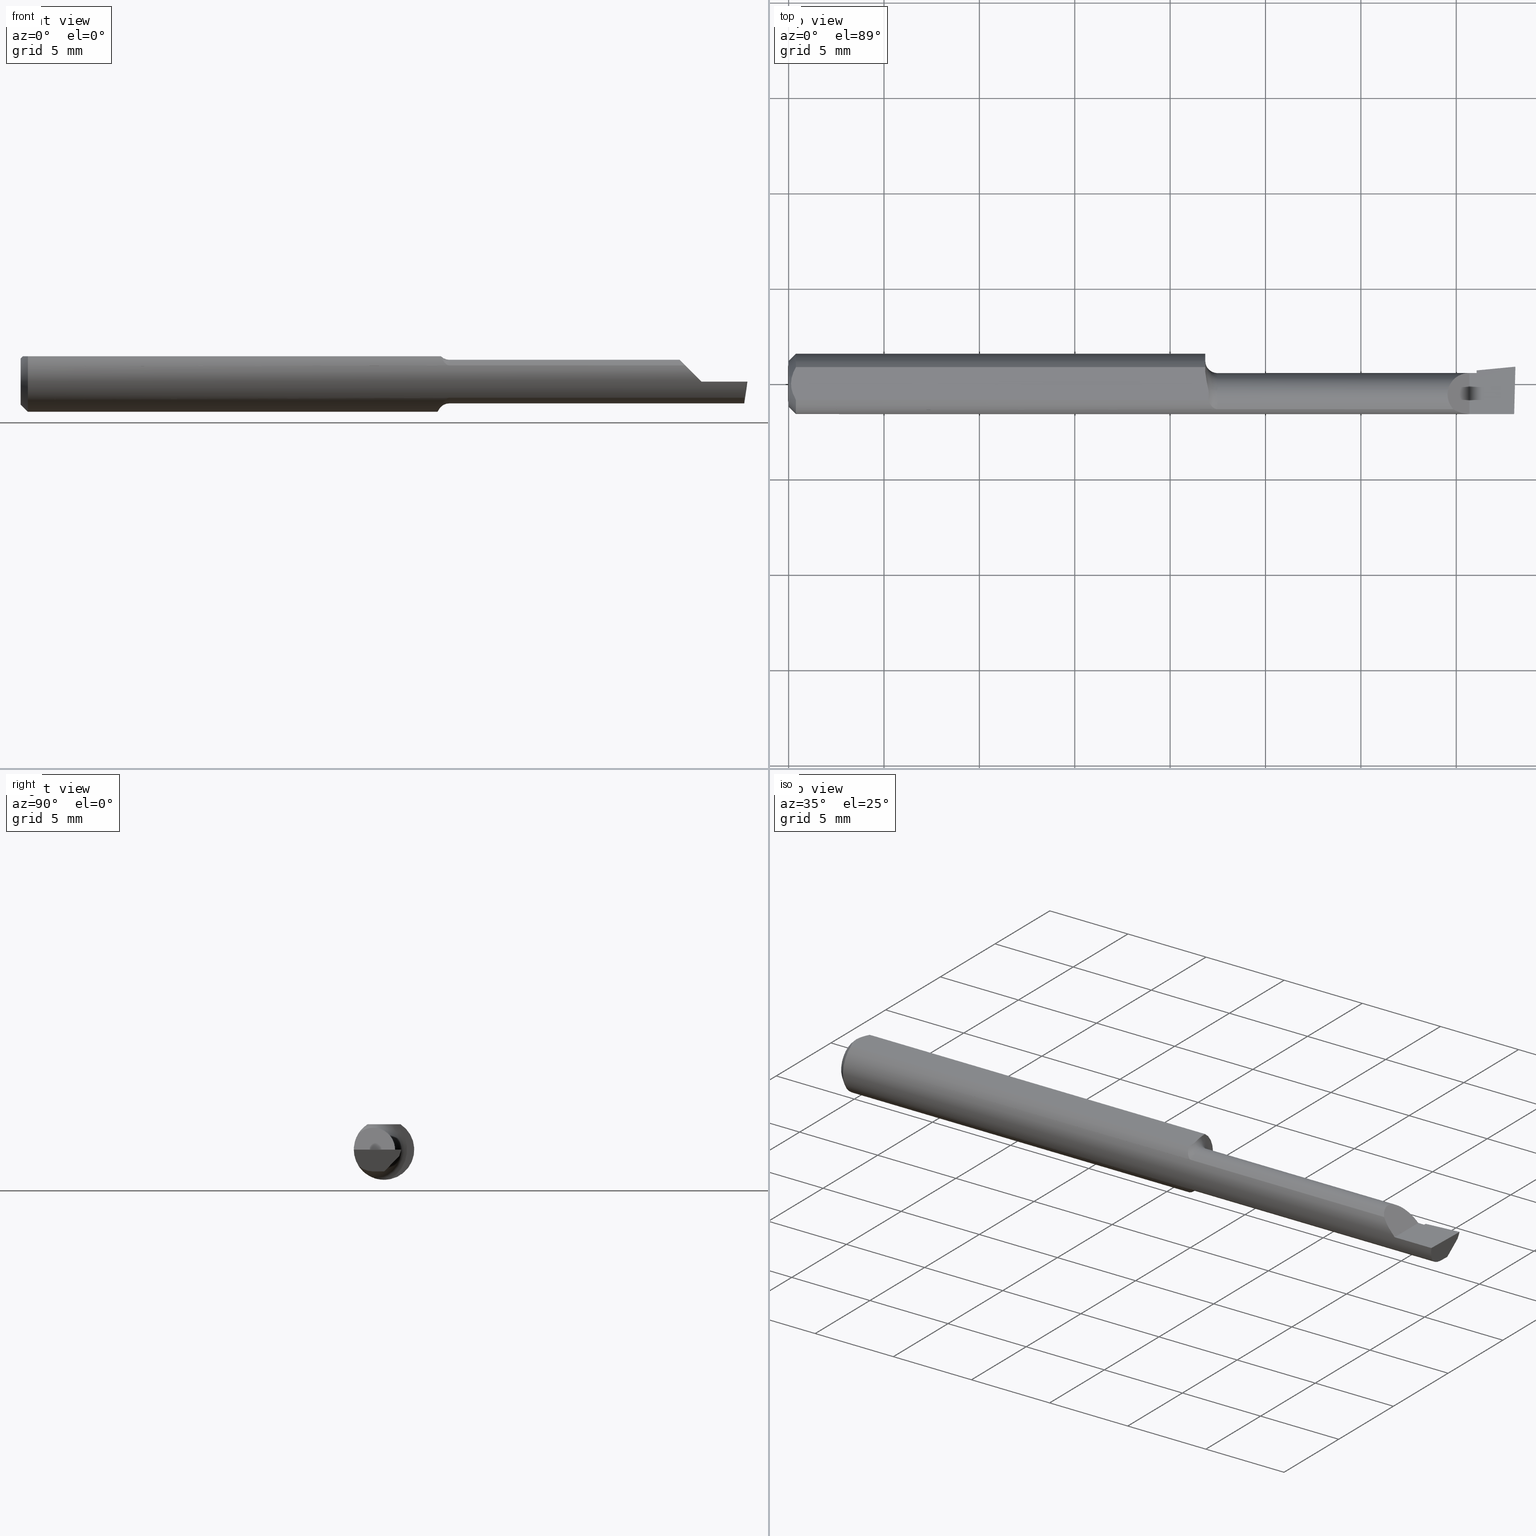
[diagram: canonical four-view strip — front | top / right | iso, engineering-drawing reading convention]
A machine part, canonical four-view strip (front | top / right | iso — engineering-drawing reading convention). The complete STEP part file that produces these views, byte-faithful:
ISO-10303-21;
HEADER;
FILE_DESCRIPTION (( 'STEP AP203' ),
    '1' );
FILE_NAME ('217261-B100600.STEP',
    '2024-04-22T21:56:52',
    ( '' ),
    ( '' ),
    'SwSTEP 2.0',
    'SolidWorks 2022',
    '' );
FILE_SCHEMA (( 'CONFIG_CONTROL_DESIGN' ));
ENDSEC;

DATA;
#1 = DIRECTION ( 'NONE',  ( 5.691349986800549142E-18, -1.000000000000000000, 7.598598113218357399E-17 ) ) ;
#2 = VERTEX_POINT ( 'NONE', #371 ) ;
#3 = CC_DESIGN_PERSON_AND_ORGANIZATION_ASSIGNMENT ( #617, #129, ( #56 ) ) ;
#4 = CARTESIAN_POINT ( 'NONE',  ( 0.8698990837423206113, -0.04251446938472885906, 0.04588310374207914960 ) ) ;
#5 = CARTESIAN_POINT ( 'NONE',  ( 1.405000000000000249, -0.06235000000000005121, 1.163414459189985436E-17 ) ) ;
#6 = CARTESIAN_POINT ( 'NONE',  ( 0.004999999999989931769, 7.898418181085889318E-16, 0.05235000000000000070 ) ) ;
#7 = DIRECTION ( 'NONE',  ( -1.000000000000000000, -5.691349986800549142E-18, 0.000000000000000000 ) ) ;
#8 = VECTOR ( 'NONE', #405, 39.37007874015748143 ) ;
#9 = EDGE_CURVE ( 'NONE', #170, #329, #126, .T. ) ;
#10 = CARTESIAN_POINT ( 'NONE',  ( 0.8787757133464819681, -0.05116520334387904267, -0.03564627526859106416 ) ) ;
#11 = CARTESIAN_POINT ( 'NONE',  ( 1.341051366671215384, -0.01896673977657559532, 0.06394863332878403250 ) ) ;
#12 = EDGE_LOOP ( 'NONE', ( #31, #161, #98, #81, #22, #474 ) ) ;
#13 = CARTESIAN_POINT ( 'NONE',  ( 0.8599999999999956568, 0.004792881695546979959, -0.06254535345742004426 ) ) ;
#14 = DIRECTION ( 'NONE',  ( 0.000000000000000000, -1.000000000000000000, 0.000000000000000000 ) ) ;
#15 = LINE ( 'NONE', #594, #94 ) ;
#16 = CARTESIAN_POINT ( 'NONE',  ( 1.498163195397628211, 0.03117310982593857888, -0.01400000000000000376 ) ) ;
#17 = ADVANCED_FACE ( 'NONE', ( #181 ), #389, .F. ) ;
#18 = VECTOR ( 'NONE', #262, 39.37007874015748143 ) ;
#19 = DIRECTION ( 'NONE',  ( 2.429359850419095604E-34, 4.268512490100411895E-17, 1.000000000000000000 ) ) ;
#20 = PERSON_AND_ORGANIZATION ( #319, #565 ) ;
#21 = CARTESIAN_POINT ( 'NONE',  ( 1.420000000000000151, 0.02442187865123201032, -0.01147666661066421533 ) ) ;
#22 = ORIENTED_EDGE ( 'NONE', *, *, #476, .F. ) ;
#23 = CARTESIAN_POINT ( 'NONE',  ( 0.000000000000000000, 0.03386738844375223462, 0.05234999999999997988 ) ) ;
#24 = VERTEX_POINT ( 'NONE', #584 ) ;
#25 = B_SPLINE_CURVE_WITH_KNOTS ( 'NONE', 3,
 ( #290, #202, #486, #287, #250, #6 ),
 .UNSPECIFIED., .F., .F.,
 ( 4, 2, 4 ),
 ( 0.002133667072902290657, 0.002585433046183636171, 0.003037199019464981685 ),
 .UNSPECIFIED. ) ;
#26 = AXIS2_PLACEMENT_3D ( 'NONE', #546, #599, #292 ) ;
#27 = EDGE_CURVE ( 'NONE', #593, #373, #350, .T. ) ;
#28 = LINE ( 'NONE', #23, #36 ) ;
#29 = ORIENTED_EDGE ( 'NONE', *, *, #493, .T. ) ;
#30 = DIRECTION ( 'NONE',  ( -1.000000000000000000, -0.000000000000000000, -0.000000000000000000 ) ) ;
#31 = ORIENTED_EDGE ( 'NONE', *, *, #600, .F. ) ;
#32 = APPLICATION_CONTEXT ( 'configuration controlled 3d designs of mechanical parts and assemblies' ) ;
#33 = CARTESIAN_POINT ( 'NONE',  ( 1.493589448587071544, -0.05267366071428580820, -0.03336177403790607093 ) ) ;
#34 = VERTEX_POINT ( 'NONE', #249 ) ;
#35 = ADVANCED_FACE ( 'NONE', ( #298 ), #398, .F. ) ;
#36 = VECTOR ( 'NONE', #452, 39.37007874015748143 ) ;
#37 = LINE ( 'NONE', #224, #157 ) ;
#38 = ORIENTED_EDGE ( 'NONE', *, *, #423, .T. ) ;
#39 = APPROVAL ( #84, 'UNSPECIFIED' ) ;
#40 = CALENDAR_DATE ( 2024, 22, 4 ) ;
#41 = B_SPLINE_CURVE_WITH_KNOTS ( 'NONE', 3,
 ( #244, #583, #52, #392, #243, #483, #445, #197, #149, #101, #194, #95, #50, #337 ),
 .UNSPECIFIED., .F., .F.,
 ( 4, 2, 2, 2, 2, 2, 4 ),
 ( 0.008234143088603517943, 0.008591734916881395637, 0.008770530831020334483, 0.008859928788089801305, 0.008949326745159269861, 0.009306918573437145820, 0.009664510401715021778 ),
 .UNSPECIFIED. ) ;
#42 = LINE ( 'NONE', #322, #48 ) ;
#43 = VERTEX_POINT ( 'NONE', #16 ) ;
#44 = COORDINATED_UNIVERSAL_TIME_OFFSET ( 8, 0, .BEHIND. ) ;
#45 = CARTESIAN_POINT ( 'NONE',  ( 1.494656860756163885, -0.05903713403021959572, -0.02331472336167218079 ) ) ;
#46 = ORIENTED_EDGE ( 'NONE', *, *, #260, .F. ) ;
#47 = FACE_OUTER_BOUND ( 'NONE', #480, .T. ) ;
#48 = VECTOR ( 'NONE', #327, 39.37007874015748143 ) ;
#49 = ORIENTED_EDGE ( 'NONE', *, *, #173, .T. ) ;
#50 = CARTESIAN_POINT ( 'NONE',  ( 0.8670657631504199436, -0.02914627190158990133, 0.05235000000000000764 ) ) ;
#51 = DIRECTION ( 'NONE',  ( -0.9922060308645520577, 0.02598182930466758078, 0.1218693434051181523 ) ) ;
#52 = CARTESIAN_POINT ( 'NONE',  ( 0.8606843363331831975, 0.01400540109987305146, 0.05235000000000000070 ) ) ;
#53 = CARTESIAN_POINT ( 'NONE',  ( 1.510364203804932748, 0.03234793331252792947, -0.01400000000000000376 ) ) ;
#54 = CARTESIAN_POINT ( 'NONE',  ( 0.8678735227475140590, -0.03849383661596396389, 0.04935695859860204926 ) ) ;
#55 = FACE_OUTER_BOUND ( 'NONE', #406, .T. ) ;
#56 = SECURITY_CLASSIFICATION ( '', '', #178 ) ;
#57 = CARTESIAN_POINT ( 'NONE',  ( 0.8659889881172213588, -0.03406974560157234599, -0.05264335079965574982 ) ) ;
#58 = DIRECTION ( 'NONE',  ( 0.02617694830784713170, 0.9996573249755579260, -3.584133854792137963E-18 ) ) ;
#59 = CARTESIAN_POINT ( 'NONE',  ( 0.8602764403634770574, -0.002103274276246028252, -0.06268864719924559237 ) ) ;
#60 = EDGE_CURVE ( 'NONE', #633, #585, #589, .T. ) ;
#61 = DIRECTION ( 'NONE',  ( -0.9953961983671800740, -0.09584575252021031166, 0.000000000000000000 ) ) ;
#62 = APPLICATION_PROTOCOL_DEFINITION ( 'international standard', 'config_control_design', 1994, #135 ) ;
#63 = DIRECTION ( 'NONE',  ( -1.000000000000000000, -5.691349986800549142E-18, 0.000000000000000000 ) ) ;
#64 = VECTOR ( 'NONE', #175, 39.37007874015748143 ) ;
#65 = CARTESIAN_POINT ( 'NONE',  ( 1.420000000000000151, 0.02794687614419681318, 0.000000000000000000 ) ) ;
#66 = ORIENTED_EDGE ( 'NONE', *, *, #508, .F. ) ;
#67 = CARTESIAN_POINT ( 'NONE',  ( 1.420000000000000151, 0.003839959974368444863, -0.03441620828959359585 ) ) ;
#68 = ORIENTED_EDGE ( 'NONE', *, *, #230, .F. ) ;
#69 = EDGE_CURVE ( 'NONE', #427, #373, #152, .T. ) ;
#70 = CARTESIAN_POINT ( 'NONE',  ( 0.01500000000000185039, -0.03386738844380016850, 0.05235000000000000070 ) ) ;
#71 = DIRECTION ( 'NONE',  ( 5.691349986800548372E-18, -1.000000000000000000, 0.000000000000000000 ) ) ;
#72 = ORIENTED_EDGE ( 'NONE', *, *, #600, .T. ) ;
#73 = VECTOR ( 'NONE', #428, 39.37007874015748143 ) ;
#74 = LINE ( 'NONE', #502, #256 ) ;
#75 = LINE ( 'NONE', #67, #358 ) ;
#76 = ORIENTED_EDGE ( 'NONE', *, *, #407, .F. ) ;
#77 = EDGE_CURVE ( 'NONE', #585, #633, #127, .T. ) ;
#78 = VERTEX_POINT ( 'NONE', #5 ) ;
#79 = APPROVAL_ROLE ( '' ) ;
#80 = LINE ( 'NONE', #626, #321 ) ;
#81 = ORIENTED_EDGE ( 'NONE', *, *, #60, .F. ) ;
#82 = PLANE ( 'NONE',  #339 ) ;
#83 = ORIENTED_EDGE ( 'NONE', *, *, #9, .F. ) ;
#84 = APPROVAL_STATUS ( 'not_yet_approved' ) ;
#85 = FACE_OUTER_BOUND ( 'NONE', #148, .T. ) ;
#86 = ORIENTED_EDGE ( 'NONE', *, *, #233, .T. ) ;
#87 = EDGE_CURVE ( 'NONE', #43, #280, #300, .T. ) ;
#88 = APPROVAL_STATUS ( 'not_yet_approved' ) ;
#89 = FACE_OUTER_BOUND ( 'NONE', #190, .T. ) ;
#90 = EDGE_LOOP ( 'NONE', ( #619, #381 ) ) ;
#91 = PRODUCT_DEFINITION_SHAPE ( 'NONE', 'NONE',  #251 ) ;
#92 = DIRECTION ( 'NONE',  ( -0.06894566448119621160, 0.7160281025913035613, -0.6946583704589933683 ) ) ;
#93 = AXIS2_PLACEMENT_3D ( 'NONE', #611, #500, #264 ) ;
#94 = VECTOR ( 'NONE', #147, 39.37007874015748143 ) ;
#95 = CARTESIAN_POINT ( 'NONE',  ( 0.8675168895146677661, -0.02435447415594422377, 0.05235000000000000070 ) ) ;
#96 = EDGE_CURVE ( 'NONE', #78, #170, #274, .T. ) ;
#97 = CARTESIAN_POINT ( 'NONE',  ( 1.405000000000000249, 0.02264999999999992714, 1.163414459189985436E-17 ) ) ;
#98 = ORIENTED_EDGE ( 'NONE', *, *, #303, .F. ) ;
#99 = CARTESIAN_POINT ( 'NONE',  ( 0.009669996313769784607, 0.02323004575534281385, 0.05234999999999998682 ) ) ;
#100 = PLANE ( 'NONE',  #586 ) ;
#101 = CARTESIAN_POINT ( 'NONE',  ( 0.8661447494546045123, -0.01034308142135324446, 0.05235000000000000070 ) ) ;
#102 = CARTESIAN_POINT ( 'NONE',  ( 1.405000000000000249, -0.06235000000000005121, 1.163414459189985436E-17 ) ) ;
#103 = AXIS2_PLACEMENT_3D ( 'NONE', #553, #215, #409 ) ;
#104 = CONICAL_SURFACE ( 'NONE', #634, 0.06235000000000000264, 0.7853981633974594923 ) ;
#105 = EDGE_CURVE ( 'NONE', #225, #170, #485, .T. ) ;
#106 = DIRECTION ( 'NONE',  ( 0.000000000000000000, 0.6963153109074924352, 0.7177360153954949196 ) ) ;
#107 = DIRECTION ( 'NONE',  ( 1.000000000000000000, 5.691349986800549142E-18, 0.000000000000000000 ) ) ;
#108 =( LENGTH_UNIT ( ) NAMED_UNIT ( * ) SI_UNIT ( $, .METRE. ) );
#109 = DIRECTION ( 'NONE',  ( 3.962974135542377331E-18, -0.6963153109074924352, -0.7177360153954949196 ) ) ;
#110 = ORIENTED_EDGE ( 'NONE', *, *, #128, .T. ) ;
#111 = COORDINATED_UNIVERSAL_TIME_OFFSET ( 8, 0, .BEHIND. ) ;
#112 = LINE ( 'NONE', #21, #8 ) ;
#113 = ORIENTED_EDGE ( 'NONE', *, *, #325, .F. ) ;
#114 = VECTOR ( 'NONE', #61, 39.37007874015748854 ) ;
#115 = LOCAL_TIME ( 14, 56, 52.00000000000000000, #44 ) ;
#116 = LENGTH_MEASURE_WITH_UNIT ( LENGTH_MEASURE( 0.02539999999999999897 ), #108 );
#117 = FACE_OUTER_BOUND ( 'NONE', #525, .T. ) ;
#118 = ORIENTED_EDGE ( 'NONE', *, *, #407, .T. ) ;
#119 = DIRECTION ( 'NONE',  ( 0.000000000000000000, 0.000000000000000000, 1.000000000000000000 ) ) ;
#120 = DIRECTION ( 'NONE',  ( 3.962974135542377331E-18, -0.6963153109074924352, -0.7177360153954949196 ) ) ;
#121 = ORIENTED_EDGE ( 'NONE', *, *, #69, .F. ) ;
#122 = APPROVAL ( #211, 'UNSPECIFIED' ) ;
#123 = CARTESIAN_POINT ( 'NONE',  ( 1.420000000000000151, 0.01811171944543688711, -0.01970540757188765646 ) ) ;
#124 = DIRECTION ( 'NONE',  ( 0.000000000000000000, 0.000000000000000000, 1.000000000000000000 ) ) ;
#125 = ORIENTED_EDGE ( 'NONE', *, *, #436, .T. ) ;
#126 =( BOUNDED_CURVE ( )  B_SPLINE_CURVE ( 3, ( #134, #11, #242, #97 ),
 .UNSPECIFIED., .F., .T. ) 
 B_SPLINE_CURVE_WITH_KNOTS ( ( 4, 4 ),
 ( 5.546277306536651075, 7.853981633974482790 ),
 .UNSPECIFIED. ) 
 CURVE ( )  GEOMETRIC_REPRESENTATION_ITEM ( )  RATIONAL_B_SPLINE_CURVE ( ( 1.000000000000000000, 0.6033122017619985122, 0.6033122017619985122, 1.000000000000000000 ) ) 
 REPRESENTATION_ITEM ( '' )  );
#127 = CIRCLE ( 'NONE', #439, 0.04504999999999995813 ) ;
#128 = EDGE_CURVE ( 'NONE', #425, #213, #177, .T. ) ;
#129 = PERSON_AND_ORGANIZATION_ROLE ( 'classification_officer' ) ;
#130 = CARTESIAN_POINT ( 'NONE',  ( 1.492874371667013866, -0.04428776192107813925, -0.04097143695815293196 ) ) ;
#131 = ORIENTED_EDGE ( 'NONE', *, *, #283, .T. ) ;
#132 = PERSON_AND_ORGANIZATION ( #319, #565 ) ;
#133 = LINE ( 'NONE', #370, #73 ) ;
#134 = CARTESIAN_POINT ( 'NONE',  ( 1.371638225962093838, -0.05267366071428583596, 0.03336177403790605012 ) ) ;
#135 = APPLICATION_CONTEXT ( 'configuration controlled 3d designs of mechanical parts and assemblies' ) ;
#136 = DIRECTION ( 'NONE',  ( -1.000000000000000000, 5.691349986800548372E-18, -0.000000000000000000 ) ) ;
#137 = ORIENTED_EDGE ( 'NONE', *, *, #303, .T. ) ;
#138 = DATE_AND_TIME ( #273, #471 ) ;
#139 = VECTOR ( 'NONE', #232, 39.37007874015748143 ) ;
#140 = DIRECTION ( 'NONE',  ( 0.000000000000000000, 1.000000000000000000, 0.000000000000000000 ) ) ;
#141 = ORIENTED_EDGE ( 'NONE', *, *, #347, .T. ) ;
#142 = EDGE_CURVE ( 'NONE', #585, #24, #563, .T. ) ;
#143 = CALENDAR_DATE ( 2024, 22, 4 ) ;
#144 = CARTESIAN_POINT ( 'NONE',  ( 1.492650040401416689, -0.03372388044486963887, -0.04504999999999997201 ) ) ;
#145 = ORIENTED_EDGE ( 'NONE', *, *, #173, .F. ) ;
#146 = CC_DESIGN_PERSON_AND_ORGANIZATION_ASSIGNMENT ( #20, #404, ( #251 ) ) ;
#147 = DIRECTION ( 'NONE',  ( -0.000000000000000000, 1.000000000000000000, -0.000000000000000000 ) ) ;
#148 = EDGE_LOOP ( 'NONE', ( #183, #517, #521, #414, #308, #453, #456, #338, #469, #417 ) ) ;
#149 = CARTESIAN_POINT ( 'NONE',  ( 0.8648180388757457093, -0.004579228880846318919, 0.05235000000000001458 ) ) ;
#150 = DIRECTION ( 'NONE',  ( -1.000000000000000000, -5.691349986800549142E-18, -0.000000000000000000 ) ) ;
#151 = CARTESIAN_POINT ( 'NONE',  ( 0.8821345559677671311, -0.05240678568573022694, 0.03378794548805848230 ) ) ;
#152 = LINE ( 'NONE', #492, #448 ) ;
#153 = CARTESIAN_POINT ( 'NONE',  ( 0.8850000000000001199, -0.05267366071428591229, 0.03336177403790595297 ) ) ;
#154 = CARTESIAN_POINT ( 'NONE',  ( 1.420000000000000151, 0.003839959974368444863, -0.03441620828959359585 ) ) ;
#155 = LINE ( 'NONE', #494, #179 ) ;
#156 = LINE ( 'NONE', #206, #330 ) ;
#157 = VECTOR ( 'NONE', #516, 39.37007874015748854 ) ;
#158 = CARTESIAN_POINT ( 'NONE',  ( 1.420000000000000151, 0.02794687614419681318, 0.000000000000000000 ) ) ;
#159 = CARTESIAN_POINT ( 'NONE',  ( 0.8600000000000000977, 0.01155624999999977677, -0.06126969549408178839 ) ) ;
#160 = CARTESIAN_POINT ( 'NONE',  ( 1.492951399889240749, -0.02221542591032727582, -0.04504999999999998589 ) ) ;
#161 = ORIENTED_EDGE ( 'NONE', *, *, #429, .T. ) ;
#162 = DIRECTION ( 'NONE',  ( 0.000000000000000000, 0.000000000000000000, -1.000000000000000000 ) ) ;
#163 = CARTESIAN_POINT ( 'NONE',  ( 0.8600000000000000977, 0.02414546164772663275, 0.05235000000000000070 ) ) ;
#164 = ORIENTED_EDGE ( 'NONE', *, *, #515, .T. ) ;
#165 = VECTOR ( 'NONE', #1, 39.37007874015748143 ) ;
#166 = VECTOR ( 'NONE', #356, 39.37007874015748854 ) ;
#167 = CARTESIAN_POINT ( 'NONE',  ( 0.000000000000000000, 0.000000000000000000, 0.000000000000000000 ) ) ;
#168 = PRODUCT_RELATED_PRODUCT_CATEGORY ( 'detail', '', ( #291 ) ) ;
#169 = CARTESIAN_POINT ( 'NONE',  ( 0.8850000000000001199, -0.02239999999999999630, 0.000000000000000000 ) ) ;
#170 = VERTEX_POINT ( 'NONE', #535 ) ;
#171 = CARTESIAN_POINT ( 'NONE',  ( 1.493589448587071544, -0.05267366071428580820, -0.03336177403790607093 ) ) ;
#172 = ORIENTED_EDGE ( 'NONE', *, *, #548, .T. ) ;
#173 = EDGE_CURVE ( 'NONE', #24, #323, #156, .T. ) ;
#174 = PERSON_AND_ORGANIZATION_ROLE ( 'design_supplier' ) ;
#175 = DIRECTION ( 'NONE',  ( -1.000000000000000000, -5.691349986800549142E-18, -0.000000000000000000 ) ) ;
#176 = VERTEX_POINT ( 'NONE', #383 ) ;
#177 = CIRCLE ( 'NONE', #278, 0.04734999999999965625 ) ;
#178 = SECURITY_CLASSIFICATION_LEVEL ( 'unclassified' ) ;
#179 = VECTOR ( 'NONE', #386, 39.37007874015748143 ) ;
#180 = PLANE ( 'NONE',  #510 ) ;
#181 = FACE_OUTER_BOUND ( 'NONE', #391, .T. ) ;
#182 = DIRECTION ( 'NONE',  ( -1.000000000000000000, -0.000000000000000000, -0.000000000000000000 ) ) ;
#183 = ORIENTED_EDGE ( 'NONE', *, *, #457, .F. ) ;
#184 = CARTESIAN_POINT ( 'NONE',  ( 0.000000000000000000, 0.000000000000000000, 0.000000000000000000 ) ) ;
#185 = EDGE_CURVE ( 'NONE', #612, #633, #307, .T. ) ;
#186 = ORIENTED_EDGE ( 'NONE', *, *, #105, .F. ) ;
#187 = CONICAL_SURFACE ( 'NONE', #543, 0.06235000000000000264, 0.7853981633974594923 ) ;
#188 = CARTESIAN_POINT ( 'NONE',  ( 0.000000000000000000, -0.03386738844375222768, 0.05234999999999997988 ) ) ;
#189 = APPROVAL ( #88, 'UNSPECIFIED' ) ;
#190 = EDGE_LOOP ( 'NONE', ( #320, #359, #572 ) ) ;
#191 = DIRECTION ( 'NONE',  ( -1.000000000000000000, -0.000000000000000000, -0.000000000000000000 ) ) ;
#192 = EDGE_LOOP ( 'NONE', ( #536, #229, #72, #365, #121, #504 ) ) ;
#193 = ADVANCED_FACE ( 'NONE', ( #487 ), #393, .F. ) ;
#194 = CARTESIAN_POINT ( 'NONE',  ( 0.8670297040742722672, -0.01497150789875728583, 0.05235000000000000070 ) ) ;
#195 = DIRECTION ( 'NONE',  ( -1.000000000000000000, -0.000000000000000000, -0.000000000000000000 ) ) ;
#196 = CC_DESIGN_PERSON_AND_ORGANIZATION_ASSIGNMENT ( #401, #302, ( #291 ) ) ;
#197 = CARTESIAN_POINT ( 'NONE',  ( 0.8645436151954090098, -0.003431463083333101752, 0.05235000000000000764 ) ) ;
#198 = CARTESIAN_POINT ( 'NONE',  ( 1.420000000000000151, -0.02239999999999999630, 0.000000000000000000 ) ) ;
#199 = CC_DESIGN_SECURITY_CLASSIFICATION ( #56, ( #246 ) ) ;
#200 = CARTESIAN_POINT ( 'NONE',  ( 0.004999999999989931769, 7.898418181085889318E-16, 0.05235000000000000070 ) ) ;
#201 = CARTESIAN_POINT ( 'NONE',  ( 0.000000000000000000, 0.000000000000000000, 0.000000000000000000 ) ) ;
#202 = CARTESIAN_POINT ( 'NONE',  ( 0.01216137397042175820, -0.02864146636719541034, 0.05235000000000000070 ) ) ;
#203 = ADVANCED_FACE ( 'NONE', ( #538 ), #100, .F. ) ;
#204 = CARTESIAN_POINT ( 'NONE',  ( 1.500000000000000222, -0.2500000000000000555, 0.000000000000000000 ) ) ;
#205 = CARTESIAN_POINT ( 'NONE',  ( 0.8835376041507415623, -0.05267366071513955583, 0.03336177403655844753 ) ) ;
#206 = CARTESIAN_POINT ( 'NONE',  ( 1.420000000000000151, -0.02239999999999999630, -0.04504999999999998589 ) ) ;
#207 = ADVANCED_FACE ( 'NONE', ( #55 ), #606, .T. ) ;
#208 = CARTESIAN_POINT ( 'NONE',  ( 1.152500000000000080, -0.05267366071428580820, -0.03336177403790607093 ) ) ;
#209 = ORIENTED_EDGE ( 'NONE', *, *, #429, .F. ) ;
#210 = ADVANCED_FACE ( 'NONE', ( #564 ), #226, .F. ) ;
#211 = APPROVAL_STATUS ( 'not_yet_approved' ) ;
#212 = CARTESIAN_POINT ( 'NONE',  ( 0.01500000000000000465, 7.635672792683746671E-18, 0.06235000000000000264 ) ) ;
#213 = VERTEX_POINT ( 'NONE', #314 ) ;
#214 = DIRECTION ( 'NONE',  ( -1.000000000000000000, -0.000000000000000000, -0.000000000000000000 ) ) ;
#215 = DIRECTION ( 'NONE',  ( -0.7071067811865432429, 0.000000000000000000, -0.7071067811865517916 ) ) ;
#216 = EDGE_LOOP ( 'NONE', ( #519, #430, #363, #76, #411, #379 ) ) ;
#217 = CARTESIAN_POINT ( 'NONE',  ( 0.000000000000000000, 0.000000000000000000, 0.000000000000000000 ) ) ;
#218 = DIRECTION ( 'NONE',  ( 0.000000000000000000, -1.000000000000000000, 0.000000000000000000 ) ) ;
#219 = ADVANCED_FACE ( 'NONE', ( #549 ), #602, .T. ) ;
#220 = ORIENTED_EDGE ( 'NONE', *, *, #142, .F. ) ;
#221 = CARTESIAN_POINT ( 'NONE',  ( 1.493548986703517656, 0.0006054938231418613382, -0.04504999999999997201 ) ) ;
#222 = ORIENTED_EDGE ( 'NONE', *, *, #230, .T. ) ;
#223 = PERSON_AND_ORGANIZATION_ROLE ( 'creator' ) ;
#224 = CARTESIAN_POINT ( 'NONE',  ( 1.497745910775796441, 0.001009611647418862980, -0.04504999999999998589 ) ) ;
#225 = VERTEX_POINT ( 'NONE', #357 ) ;
#226 = TOROIDAL_SURFACE ( 'NONE', #609, 0.07004999999999993177, 0.02500000000000000486 ) ;
#227 = COORDINATED_UNIVERSAL_TIME_OFFSET ( 8, 0, .BEHIND. ) ;
#228 = CYLINDRICAL_SURFACE ( 'NONE', #542, 0.04504999999999995813 ) ;
#229 = ORIENTED_EDGE ( 'NONE', *, *, #255, .F. ) ;
#230 = EDGE_CURVE ( 'NONE', #425, #289, #511, .T. ) ;
#231 = SHAPE_DEFINITION_REPRESENTATION ( #91, #301 ) ;
#232 = DIRECTION ( 'NONE',  ( 0.7071067811865395791, 0.000000000000000000, -0.7071067811865554553 ) ) ;
#233 = EDGE_CURVE ( 'NONE', #2, #557, #28, .T. ) ;
#234 = CARTESIAN_POINT ( 'NONE',  ( 0.01500000000000000465, 0.000000000000000000, 0.000000000000000000 ) ) ;
#235 = ORIENTED_EDGE ( 'NONE', *, *, #316, .F. ) ;
#236 = AXIS2_PLACEMENT_3D ( 'NONE', #184, #518, #578 ) ;
#237 = APPROVAL_PERSON_ORGANIZATION ( #369, #39, #577 ) ;
#238 = DIRECTION ( 'NONE',  ( 0.000000000000000000, 0.000000000000000000, 1.000000000000000000 ) ) ;
#239 = EDGE_CURVE ( 'NONE', #263, #276, #384, .T. ) ;
#240 = ORIENTED_EDGE ( 'NONE', *, *, #87, .T. ) ;
#241 = CARTESIAN_POINT ( 'NONE',  ( 0.8832409546724755423, -0.05267366071428588453, -0.03336177403790597379 ) ) ;
#242 = CARTESIAN_POINT ( 'NONE',  ( 1.359483931624303699, 0.02264999999999996183, 0.04551606837569584924 ) ) ;
#243 = CARTESIAN_POINT ( 'NONE',  ( 0.8627471345220282251, 0.004017454403653720856, 0.05235000000000000070 ) ) ;
#244 = CARTESIAN_POINT ( 'NONE',  ( 0.8600000000000000977, 0.02414546164772663275, 0.05235000000000000070 ) ) ;
#245 = DIRECTION ( 'NONE',  ( 0.000000000000000000, 0.000000000000000000, 1.000000000000000000 ) ) ;
#246 = PRODUCT_DEFINITION_FORMATION_WITH_SPECIFIED_SOURCE ( 'ANY', '', #291, .NOT_KNOWN. ) ;
#247 = ADVANCED_FACE ( 'NONE', ( #413 ), #614, .T. ) ;
#248 = CARTESIAN_POINT ( 'NONE',  ( 0.8627289934230484292, -0.02215482600002546126, -0.05866202889160986034 ) ) ;
#249 = CARTESIAN_POINT ( 'NONE',  ( 0.01500000000000000465, 0.000000000000000000, -0.06235000000000000264 ) ) ;
#250 = CARTESIAN_POINT ( 'NONE',  ( 0.004999999999998879473, -0.005957634400466955450, 0.05235000000000000070 ) ) ;
#251 = PRODUCT_DEFINITION ( 'UNKNOWN', '', #246, #351 ) ;
#252 = DIRECTION ( 'NONE',  ( 0.000000000000000000, 1.000000000000000000, -4.268512490100411895E-17 ) ) ;
#253 = APPLICATION_PROTOCOL_DEFINITION ( 'international standard', 'config_control_design', 1994, #32 ) ;
#254 = DIRECTION ( 'NONE',  ( 0.000000000000000000, 0.000000000000000000, 1.000000000000000000 ) ) ;
#255 = EDGE_CURVE ( 'NONE', #315, #176, #258, .T. ) ;
#256 = VECTOR ( 'NONE', #214, 39.37007874015748143 ) ;
#257 = APPROVAL_DATE_TIME ( #305, #122 ) ;
#258 = LINE ( 'NONE', #160, #368 ) ;
#259 = EDGE_LOOP ( 'NONE', ( #235, #125, #576, #582, #186, #531, #38, #465, #560, #86, #420, #566 ) ) ;
#260 = EDGE_CURVE ( 'NONE', #593, #280, #112, .T. ) ;
#261 = CALENDAR_DATE ( 2024, 22, 4 ) ;
#262 = DIRECTION ( 'NONE',  ( 0.7071067811865395791, 8.659560562355030233E-17, 0.7071067811865554553 ) ) ;
#263 = VERTEX_POINT ( 'NONE', #163 ) ;
#264 = DIRECTION ( 'NONE',  ( 5.691349986800549142E-18, -1.000000000000000000, 0.000000000000000000 ) ) ;
#265 = VERTEX_POINT ( 'NONE', #171 ) ;
#266 = AXIS2_PLACEMENT_3D ( 'NONE', #234, #182, #238 ) ;
#267 = CIRCLE ( 'NONE', #266, 0.06235000000000000264 ) ;
#268 =( NAMED_UNIT ( * ) PLANE_ANGLE_UNIT ( ) SI_UNIT ( $, .RADIAN. ) );
#269 = ADVANCED_FACE ( 'NONE', ( #318 ), #556, .F. ) ;
#270 = DIRECTION ( 'NONE',  ( -1.000000000000000000, -5.691349986800549142E-18, -0.000000000000000000 ) ) ;
#271 = CARTESIAN_POINT ( 'NONE',  ( 0.01500000000000000465, 0.000000000000000000, 0.000000000000000000 ) ) ;
#272 = ORIENTED_EDGE ( 'NONE', *, *, #233, .F. ) ;
#273 = CALENDAR_DATE ( 2024, 22, 4 ) ;
#274 =( BOUNDED_CURVE ( )  B_SPLINE_CURVE ( 3, ( #102, #344, #545, #444 ),
 .UNSPECIFIED., .F., .F. ) 
 B_SPLINE_CURVE_WITH_KNOTS ( ( 4, 4 ),
 ( 4.712388980384689674, 5.276982613231238517 ),
 .UNSPECIFIED. ) 
 CURVE ( )  GEOMETRIC_REPRESENTATION_ITEM ( )  RATIONAL_B_SPLINE_CURVE ( ( 1.000000000000000000, 0.9736121104788258984, 0.9736121104788258984, 1.000000000000000000 ) ) 
 REPRESENTATION_ITEM ( '' )  );
#275 = CARTESIAN_POINT ( 'NONE',  ( 0.01500000000000000465, 0.000000000000000000, -0.06235000000000000264 ) ) ;
#276 = VERTEX_POINT ( 'NONE', #506 ) ;
#277 = ADVANCED_FACE ( 'NONE', ( #117 ), #559, .F. ) ;
#278 = AXIS2_PLACEMENT_3D ( 'NONE', #201, #195, #245 ) ;
#279 = LINE ( 'NONE', #275, #139 ) ;
#280 = VERTEX_POINT ( 'NONE', #503 ) ;
#281 = CARTESIAN_POINT ( 'NONE',  ( 1.497433779686218935, -0.06235000000000005121, 2.433176676323288696E-19 ) ) ;
#282 = ORIENTED_EDGE ( 'NONE', *, *, #591, .F. ) ;
#283 = EDGE_CURVE ( 'NONE', #34, #629, #349, .T. ) ;
#284 = FACE_OUTER_BOUND ( 'NONE', #432, .T. ) ;
#285 = ORIENTED_EDGE ( 'NONE', *, *, #27, .T. ) ;
#286 = AXIS2_PLACEMENT_3D ( 'NONE', #459, #306, #254 ) ;
#287 = CARTESIAN_POINT ( 'NONE',  ( 0.006057557792978140489, -0.01187252718384441616, 0.05234999999999998682 ) ) ;
#288 = CC_DESIGN_PERSON_AND_ORGANIZATION_ASSIGNMENT ( #374, #223, ( #246 ) ) ;
#289 = VERTEX_POINT ( 'NONE', #450 ) ;
#290 = CARTESIAN_POINT ( 'NONE',  ( 0.01500000000000185039, -0.03386738844380016850, 0.05235000000000000070 ) ) ;
#291 = PRODUCT ( '217261-B100600', '217261-B100600', '', ( #598 ) ) ;
#292 = DIRECTION ( 'NONE',  ( 0.000000000000000000, -1.000000000000000000, 0.000000000000000000 ) ) ;
#293 = ORIENTED_EDGE ( 'NONE', *, *, #255, .T. ) ;
#294 = PLANE ( 'NONE',  #340 ) ;
#295 = CARTESIAN_POINT ( 'NONE',  ( 1.490592351376191838, -0.04680632761517490581, -0.05901368851803154986 ) ) ;
#296 = CARTESIAN_POINT ( 'NONE',  ( 0.8726126354017768039, -0.04600867268841657420, -0.04219264322731242078 ) ) ;
#297 = VECTOR ( 'NONE', #342, 39.37007874015748854 ) ;
#298 = FACE_OUTER_BOUND ( 'NONE', #216, .T. ) ;
#299 = CARTESIAN_POINT ( 'NONE',  ( 0.8743270384831822728, -0.04799382633214965832, -0.03989142061000421069 ) ) ;
#300 = LINE ( 'NONE', #53, #114 ) ;
#301 = ADVANCED_BREP_SHAPE_REPRESENTATION ( '217261-B100600', ( #605, #397 ), #422 ) ;
#302 = PERSON_AND_ORGANIZATION_ROLE ( 'design_owner' ) ;
#303 = EDGE_CURVE ( 'NONE', #585, #323, #75, .T. ) ;
#304 = LINE ( 'NONE', #496, #165 ) ;
#305 = DATE_AND_TIME ( #261, #499 ) ;
#306 = DIRECTION ( 'NONE',  ( -1.000000000000000000, -0.000000000000000000, -0.000000000000000000 ) ) ;
#307 = CIRCLE ( 'NONE', #26, 0.04504999999999999283 ) ;
#308 = ORIENTED_EDGE ( 'NONE', *, *, #9, .T. ) ;
#309 = APPROVAL_PERSON_ORGANIZATION ( #132, #189, #79 ) ;
#310 = CARTESIAN_POINT ( 'NONE',  ( 1.498384822753108914, 0.03264131821163467062, -0.01250862198832605743 ) ) ;
#311 = CARTESIAN_POINT ( 'NONE',  ( 1.500000000000000222, -0.02239999999999999630, -0.04504999999999998589 ) ) ;
#312 = ORIENTED_EDGE ( 'NONE', *, *, #476, .T. ) ;
#313 = LINE ( 'NONE', #310, #533 ) ;
#314 = CARTESIAN_POINT ( 'NONE',  ( 0.000000000000000000, 0.000000000000000000, -0.04734999999999965625 ) ) ;
#315 = VERTEX_POINT ( 'NONE', #221 ) ;
#316 = EDGE_CURVE ( 'NONE', #265, #467, #416, .T. ) ;
#317 = DIRECTION ( 'NONE',  ( -1.000000000000000000, -0.000000000000000000, -0.000000000000000000 ) ) ;
#318 = FACE_OUTER_BOUND ( 'NONE', #554, .T. ) ;
#319 = PERSON ( 'UNSPECIFIED', 'UNSPECIFIED', 'UNSPECIFIED', ('UNSPECIFIED'), ('UNSPECIFIED'), ('UNSPECIFIED') ) ;
#320 = ORIENTED_EDGE ( 'NONE', *, *, #484, .T. ) ;
#321 = VECTOR ( 'NONE', #136, 39.37007874015748143 ) ;
#322 = CARTESIAN_POINT ( 'NONE',  ( 1.420000000000000151, 0.003839959974368444863, -0.03441620828959359585 ) ) ;
#323 = VERTEX_POINT ( 'NONE', #366 ) ;
#324 = CARTESIAN_POINT ( 'NONE',  ( 1.495973035530413053, -0.06235000000000000264, -0.01189272970908753294 ) ) ;
#325 = EDGE_CURVE ( 'NONE', #557, #263, #304, .T. ) ;
#326 = ORIENTED_EDGE ( 'NONE', *, *, #548, .F. ) ;
#327 = DIRECTION ( 'NONE',  ( 3.962974135542377331E-18, -0.6963153109074924352, -0.7177360153954949196 ) ) ;
#328 = CC_DESIGN_DATE_AND_TIME_ASSIGNMENT ( #472, #573, ( #56 ) ) ;
#329 = VERTEX_POINT ( 'NONE', #574 ) ;
#330 = VECTOR ( 'NONE', #252, 39.37007874015748143 ) ;
#331 = APPROVAL_DATE_TIME ( #138, #39 ) ;
#332 = APPROVAL_PERSON_ORGANIZATION ( #497, #122, #447 ) ;
#333 = DIRECTION ( 'NONE',  ( -1.000000000000000000, -5.691349986800549142E-18, -0.000000000000000000 ) ) ;
#334 = ORIENTED_EDGE ( 'NONE', *, *, #185, .F. ) ;
#335 = CARTESIAN_POINT ( 'NONE',  ( 0.8850000000000001199, -0.05267366071428591229, -0.03336177403790595297 ) ) ;
#336 = ORIENTED_EDGE ( 'NONE', *, *, #347, .F. ) ;
#337 = CARTESIAN_POINT ( 'NONE',  ( 0.8661821896890746775, -0.03386738844375222074, 0.05235000000000000070 ) ) ;
#338 = ORIENTED_EDGE ( 'NONE', *, *, #77, .F. ) ;
#339 = AXIS2_PLACEMENT_3D ( 'NONE', #426, #468, #630 ) ;
#340 = AXIS2_PLACEMENT_3D ( 'NONE', #489, #92, #106 ) ;
#341 = CARTESIAN_POINT ( 'NONE',  ( 0.8815922039432545487, -0.05228879390856559090, -0.03397671269166890884 ) ) ;
#342 = DIRECTION ( 'NONE',  ( 0.9953961983671786307, 0.09584575252022466130, -1.219008768213809603E-16 ) ) ;
#343 = CARTESIAN_POINT ( 'NONE',  ( 0.8850000000000001199, -0.02239999999999999977, 0.000000000000000000 ) ) ;
#344 = CARTESIAN_POINT ( 'NONE',  ( 1.393107270290912414, -0.06234999999999999570, 0.01189272970908749824 ) ) ;
#345 = CARTESIAN_POINT ( 'NONE',  ( 0.8850000000000001199, -0.05267366071428591229, -0.03336177403790595297 ) ) ;
#346 = DIRECTION ( 'NONE',  ( 0.000000000000000000, -7.598598113218357399E-17, -1.000000000000000000 ) ) ;
#347 = EDGE_CURVE ( 'NONE', #213, #34, #279, .T. ) ;
#348 = CARTESIAN_POINT ( 'NONE',  ( 0.006064493299689842180, 0.01189382783781397189, 0.05235000000000000070 ) ) ;
#349 = CIRCLE ( 'NONE', #631, 0.06235000000000000264 ) ;
#350 = LINE ( 'NONE', #540, #297 ) ;
#351 = DESIGN_CONTEXT ( 'detailed design', #135, 'design' ) ;
#352 = ADVANCED_FACE ( 'NONE', ( #89 ), #82, .T. ) ;
#353 = DIRECTION ( 'NONE',  ( 1.000000000000000000, 5.691349986800549142E-18, 0.000000000000000000 ) ) ;
#354 = DIRECTION ( 'NONE',  ( -0.02617694830784712129, -0.9996573249755579260, 4.246274422243625101E-17 ) ) ;
#355 = ORIENTED_EDGE ( 'NONE', *, *, #260, .T. ) ;
#356 = DIRECTION ( 'NONE',  ( 0.1240019227988990169, 0.3022330132596629526, 0.9451342385281363834 ) ) ;
#357 = CARTESIAN_POINT ( 'NONE',  ( 0.8850000000000001199, -0.05267366071428591229, 0.03336177403790595297 ) ) ;
#358 = VECTOR ( 'NONE', #120, 39.37007874015748143 ) ;
#359 = ORIENTED_EDGE ( 'NONE', *, *, #325, .T. ) ;
#360 = DIRECTION ( 'NONE',  ( 0.000000000000000000, 0.000000000000000000, 1.000000000000000000 ) ) ;
#361 = CARTESIAN_POINT ( 'NONE',  ( 0.8600000000000000977, -0.02239999999999999977, 0.000000000000000000 ) ) ;
#362 = ADVANCED_FACE ( 'NONE', ( #47 ), #187, .T. ) ;
#363 = ORIENTED_EDGE ( 'NONE', *, *, #27, .F. ) ;
#364 = CARTESIAN_POINT ( 'NONE',  ( 0.01500000000000000465, 0.000000000000000000, 0.000000000000000000 ) ) ;
#365 = ORIENTED_EDGE ( 'NONE', *, *, #591, .T. ) ;
#366 = CARTESIAN_POINT ( 'NONE',  ( 1.420000000000000151, -0.006476468102432248429, -0.04504999999999998589 ) ) ;
#367 = ORIENTED_EDGE ( 'NONE', *, *, #488, .F. ) ;
#368 = VECTOR ( 'NONE', #354, 39.37007874015748854 ) ;
#369 = PERSON_AND_ORGANIZATION ( #319, #565 ) ;
#370 = CARTESIAN_POINT ( 'NONE',  ( 1.420000000000000151, -0.2500000000000000555, 9.797174393178828616E-18 ) ) ;
#371 = CARTESIAN_POINT ( 'NONE',  ( 0.01500000000000000465, 0.03386738844375223462, 0.05234999999999997988 ) ) ;
#372 = CARTESIAN_POINT ( 'NONE',  ( 1.500000000000000222, 0.03565000000000798086, 2.613156668236408690E-14 ) ) ;
#373 = VERTEX_POINT ( 'NONE', #372 ) ;
#374 = PERSON_AND_ORGANIZATION ( #319, #565 ) ;
#375 = CARTESIAN_POINT ( 'NONE',  ( 1.492946566646604856, -0.02239999999999999630, -0.04504999999999998589 ) ) ;
#376 = ORIENTED_EDGE ( 'NONE', *, *, #575, .T. ) ;
#377 = AXIS2_PLACEMENT_3D ( 'NONE', #65, #63, #402 ) ;
#378 = DIRECTION ( 'NONE',  ( 0.000000000000000000, 0.2936076258024063468, 0.9559260233253795702 ) ) ;
#379 = ORIENTED_EDGE ( 'NONE', *, *, #515, .F. ) ;
#380 = LINE ( 'NONE', #188, #431 ) ;
#381 = ORIENTED_EDGE ( 'NONE', *, *, #60, .T. ) ;
#382 = DIRECTION ( 'NONE',  ( 0.000000000000000000, -1.000000000000000000, 0.000000000000000000 ) ) ;
#383 = CARTESIAN_POINT ( 'NONE',  ( 1.492946566646604856, -0.02239999999999999630, -0.04504999999999998589 ) ) ;
#384 = CIRCLE ( 'NONE', #410, 0.07004999999999993177 ) ;
#385 = CC_DESIGN_APPROVAL ( #189, ( #246 ) ) ;
#386 = DIRECTION ( 'NONE',  ( 1.000000000000000000, 5.691349986800549142E-18, 0.000000000000000000 ) ) ;
#387 = DIRECTION ( 'NONE',  ( 0.000000000000000000, -1.000000000000000000, -1.776356839400250465E-15 ) ) ;
#388 = CARTESIAN_POINT ( 'NONE',  ( 0.8756610829636816140, -0.04915643512136042004, 0.03841395140597848173 ) ) ;
#389 = PLANE ( 'NONE',  #421 ) ;
#390 = B_SPLINE_CURVE_WITH_KNOTS ( 'NONE', 3,
 ( #434, #54, #4, #581, #388, #437, #534, #151, #205, #153 ),
 .UNSPECIFIED., .F., .F.,
 ( 4, 2, 2, 2, 4 ),
 ( 3.797231421916798275E-07, 0.0004333373953855917818, 0.0006498162315072892508, 0.0007580556495681347326, 0.0008662950676289801061 ),
 .UNSPECIFIED. ) ;
#391 = EDGE_LOOP ( 'NONE', ( #66, #113, #272, #326, #367, #399 ) ) ;
#392 = CARTESIAN_POINT ( 'NONE',  ( 0.8621728268178152632, 0.006508548278878081503, 0.05235000000000000070 ) ) ;
#393 = PLANE ( 'NONE',  #532 ) ;
#394 = ADVANCED_FACE ( 'NONE', ( #85 ), #228, .T. ) ;
#395 = DIRECTION ( 'NONE',  ( 1.000000000000000000, 0.000000000000000000, 0.000000000000000000 ) ) ;
#396 = CIRCLE ( 'NONE', #610, 0.06235000000000000264 ) ;
#397 = AXIS2_PLACEMENT_3D ( 'NONE', #167, #360, #395 ) ;
#398 = PLANE ( 'NONE',  #470 ) ;
#399 = ORIENTED_EDGE ( 'NONE', *, *, #423, .F. ) ;
#400 = EDGE_CURVE ( 'NONE', #2, #34, #267, .T. ) ;
#401 = PERSON_AND_ORGANIZATION ( #319, #565 ) ;
#402 = DIRECTION ( 'NONE',  ( 5.691349986800549142E-18, -1.000000000000000000, 0.000000000000000000 ) ) ;
#403 = EDGE_LOOP ( 'NONE', ( #507, #110 ) ) ;
#404 = PERSON_AND_ORGANIZATION_ROLE ( 'creator' ) ;
#405 = DIRECTION ( 'NONE',  ( 1.671023757235065686E-18, -0.2936076258024062913, -0.9559260233253795702 ) ) ;
#406 = EDGE_LOOP ( 'NONE', ( #118, #355, #312, #334 ) ) ;
#407 = EDGE_CURVE ( 'NONE', #612, #593, #133, .T. ) ;
#408 =( BOUNDED_CURVE ( )  B_SPLINE_CURVE ( 3, ( #33, #45, #324, #419 ),
 .UNSPECIFIED., .F., .F. ) 
 B_SPLINE_CURVE_WITH_KNOTS ( ( 4, 4 ),
 ( 0.7961532496683338955, 1.360746882514883849 ),
 .UNSPECIFIED. ) 
 CURVE ( )  GEOMETRIC_REPRESENTATION_ITEM ( )  RATIONAL_B_SPLINE_CURVE ( ( 1.000000000000000000, 0.9736121104788257874, 0.9736121104788257874, 1.000000000000000000 ) ) 
 REPRESENTATION_ITEM ( '' )  );
#409 = DIRECTION ( 'NONE',  ( -0.7071067811865516806, 0.000000000000000000, 0.7071067811865431318 ) ) ;
#410 = AXIS2_PLACEMENT_3D ( 'NONE', #361, #463, #218 ) ;
#411 = ORIENTED_EDGE ( 'NONE', *, *, #522, .F. ) ;
#412 = DIRECTION ( 'NONE',  ( 0.1053106618241425457, 0.6976485211320180291, 0.7086580314005263004 ) ) ;
#413 = FACE_OUTER_BOUND ( 'NONE', #607, .T. ) ;
#414 = ORIENTED_EDGE ( 'NONE', *, *, #105, .T. ) ;
#415 = COORDINATED_UNIVERSAL_TIME_OFFSET ( 8, 0, .BEHIND. ) ;
#416 = LINE ( 'NONE', #208, #64 ) ;
#417 = ORIENTED_EDGE ( 'NONE', *, *, #464, .F. ) ;
#418 = CALENDAR_DATE ( 2024, 22, 4 ) ;
#419 = CARTESIAN_POINT ( 'NONE',  ( 1.497433779686218935, -0.06235000000000005121, 2.433176676323288696E-19 ) ) ;
#420 = ORIENTED_EDGE ( 'NONE', *, *, #484, .F. ) ;
#421 = AXIS2_PLACEMENT_3D ( 'NONE', #441, #346, #446 ) ;
#422 =( GEOMETRIC_REPRESENTATION_CONTEXT ( 3 ) GLOBAL_UNCERTAINTY_ASSIGNED_CONTEXT ( ( #541 ) ) GLOBAL_UNIT_ASSIGNED_CONTEXT ( ( #613, #268, #458 ) ) REPRESENTATION_CONTEXT ( 'NONE', 'WORKASPACE' ) );
#423 = EDGE_CURVE ( 'NONE', #603, #629, #380, .T. ) ;
#424 = CARTESIAN_POINT ( 'NONE',  ( 1.493589448587071544, -0.05267366071428580820, -0.03336177403790607093 ) ) ;
#425 = VERTEX_POINT ( 'NONE', #524 ) ;
#426 = CARTESIAN_POINT ( 'NONE',  ( 0.8600000000000000977, 0.04764999999999993546, 0.000000000000000000 ) ) ;
#427 = VERTEX_POINT ( 'NONE', #281 ) ;
#428 = DIRECTION ( 'NONE',  ( -5.691349986800549142E-18, 1.000000000000000000, 6.969893544162626646E-34 ) ) ;
#429 = EDGE_CURVE ( 'NONE', #315, #323, #37, .T. ) ;
#430 = ORIENTED_EDGE ( 'NONE', *, *, #69, .T. ) ;
#431 = VECTOR ( 'NONE', #191, 39.37007874015748143 ) ;
#432 = EDGE_LOOP ( 'NONE', ( #282, #240, #46, #285 ) ) ;
#433 = DIMENSIONAL_EXPONENTS ( 1.000000000000000000, 0.000000000000000000, 0.000000000000000000, 0.000000000000000000, 0.000000000000000000, 0.000000000000000000, 0.000000000000000000 ) ;
#434 = CARTESIAN_POINT ( 'NONE',  ( 0.8661821896890746775, -0.03386738844375222074, 0.05235000000000000070 ) ) ;
#435 = DIRECTION ( 'NONE',  ( -1.224646799147353947E-16, 0.000000000000000000, -1.000000000000000000 ) ) ;
#436 = EDGE_CURVE ( 'NONE', #265, #427, #408, .T. ) ;
#437 = CARTESIAN_POINT ( 'NONE',  ( 0.8785877219039734953, -0.05102224570557689631, 0.03585204334870991522 ) ) ;
#438 = CARTESIAN_POINT ( 'NONE',  ( 1.420000000000000151, -0.02239999999999999630, 0.000000000000000000 ) ) ;
#439 = AXIS2_PLACEMENT_3D ( 'NONE', #198, #107, #387 ) ;
#440 = CARTESIAN_POINT ( 'NONE',  ( 0.01500000000000000465, 0.03386738844375223462, 0.05234999999999997988 ) ) ;
#441 = CARTESIAN_POINT ( 'NONE',  ( 1.500000000000000222, 0.1123499999999999915, 0.05234999999999998682 ) ) ;
#442 = CARTESIAN_POINT ( 'NONE',  ( 0.8616480927463245898, -0.01564147840104316428, -0.06074236086770337661 ) ) ;
#443 = ADVANCED_FACE ( 'NONE', ( #284 ), #180, .T. ) ;
#444 = CARTESIAN_POINT ( 'NONE',  ( 1.371638225962093838, -0.05267366071428583596, 0.03336177403790605012 ) ) ;
#445 = CARTESIAN_POINT ( 'NONE',  ( 0.8639433730835746061, -0.0009488278625737271406, 0.05234999999999998682 ) ) ;
#446 = DIRECTION ( 'NONE',  ( 0.000000000000000000, 1.000000000000000000, -7.598598113218357399E-17 ) ) ;
#447 = APPROVAL_ROLE ( '' ) ;
#448 = VECTOR ( 'NONE', #58, 39.37007874015748854 ) ;
#449 = CIRCLE ( 'NONE', #482, 0.04734999999999965625 ) ;
#450 = CARTESIAN_POINT ( 'NONE',  ( 0.004999999999989931769, 7.898418181085889318E-16, 0.05235000000000000070 ) ) ;
#451 = DIRECTION ( 'NONE',  ( 1.000000000000000000, 0.000000000000000000, 0.000000000000000000 ) ) ;
#452 = DIRECTION ( 'NONE',  ( 1.000000000000000000, 0.000000000000000000, 0.000000000000000000 ) ) ;
#453 = ORIENTED_EDGE ( 'NONE', *, *, #522, .T. ) ;
#454 = B_SPLINE_CURVE_WITH_KNOTS ( 'NONE', 3,
 ( #345, #241, #341, #10, #539, #299, #296, #491, #57, #248, #442, #59, #13, #159 ),
 .UNSPECIFIED., .F., .F.,
 ( 4, 2, 2, 2, 2, 2, 4 ),
 ( 1.960001601931791046E-07, 0.0001315703184465657094, 0.0002629446367329382750, 0.0005256932733056828098, 0.001051190546451171446, 0.001576687819596660298, 0.002102185092742148934 ),
 .UNSPECIFIED. ) ;
#455 = ADVANCED_FACE ( 'NONE', ( #466 ), #623, .F. ) ;
#456 = ORIENTED_EDGE ( 'NONE', *, *, #185, .T. ) ;
#457 = EDGE_CURVE ( 'NONE', #265, #176, #475, .T. ) ;
#458 =( NAMED_UNIT ( * ) SI_UNIT ( $, .STERADIAN. ) SOLID_ANGLE_UNIT ( ) );
#459 = CARTESIAN_POINT ( 'NONE',  ( 0.000000000000000000, 0.000000000000000000, 0.000000000000000000 ) ) ;
#460 = AXIS2_PLACEMENT_3D ( 'NONE', #438, #150, #14 ) ;
#461 = EDGE_LOOP ( 'NONE', ( #376, #616, #579, #29, #627 ) ) ;
#462 = CC_DESIGN_APPROVAL ( #39, ( #56 ) ) ;
#463 = DIRECTION ( 'NONE',  ( -1.000000000000000000, -5.691349986800549142E-18, -0.000000000000000000 ) ) ;
#464 = EDGE_CURVE ( 'NONE', #176, #24, #80, .T. ) ;
#465 = ORIENTED_EDGE ( 'NONE', *, *, #283, .F. ) ;
#466 = FACE_OUTER_BOUND ( 'NONE', #403, .T. ) ;
#467 = VERTEX_POINT ( 'NONE', #335 ) ;
#468 = DIRECTION ( 'NONE',  ( 1.000000000000000000, 5.691349986800549142E-18, 0.000000000000000000 ) ) ;
#469 = ORIENTED_EDGE ( 'NONE', *, *, #142, .T. ) ;
#470 = AXIS2_PLACEMENT_3D ( 'NONE', #204, #435, #495 ) ;
#471 = LOCAL_TIME ( 14, 56, 52.00000000000000000, #227 ) ;
#472 = DATE_AND_TIME ( #143, #115 ) ;
#473 = DIRECTION ( 'NONE',  ( 5.691349986800548372E-18, -1.000000000000000000, 0.000000000000000000 ) ) ;
#474 = ORIENTED_EDGE ( 'NONE', *, *, #87, .F. ) ;
#475 =( BOUNDED_CURVE ( )  B_SPLINE_CURVE ( 3, ( #424, #130, #144, #375 ),
 .UNSPECIFIED., .F., .F. ) 
 B_SPLINE_CURVE_WITH_KNOTS ( ( 4, 4 ),
 ( 5.756326750816665339, 6.493234751459599607 ),
 .UNSPECIFIED. ) 
 CURVE ( )  GEOMETRIC_REPRESENTATION_ITEM ( )  RATIONAL_B_SPLINE_CURVE ( ( 1.000000000000000000, 0.9552568590268900595, 0.9552568590268900595, 1.000000000000000000 ) ) 
 REPRESENTATION_ITEM ( '' )  );
#476 = EDGE_CURVE ( 'NONE', #280, #633, #42, .T. ) ;
#477 = DIRECTION ( 'NONE',  ( 0.000000000000000000, 0.000000000000000000, -1.000000000000000000 ) ) ;
#478 = ORIENTED_EDGE ( 'NONE', *, *, #580, .F. ) ;
#479 = CARTESIAN_POINT ( 'NONE',  ( 0.8600000000000000977, 0.000000000000000000, 0.000000000000000000 ) ) ;
#480 = EDGE_LOOP ( 'NONE', ( #68, #478, #141, #131, #528 ) ) ;
#481 = VECTOR ( 'NONE', #109, 39.37007874015748143 ) ;
#482 = AXIS2_PLACEMENT_3D ( 'NONE', #217, #317, #119 ) ;
#483 = CARTESIAN_POINT ( 'NONE',  ( 0.8636403934954570705, 0.0002918085034137851675, 0.05234999999999998682 ) ) ;
#484 = EDGE_CURVE ( 'NONE', #276, #557, #396, .T. ) ;
#485 = LINE ( 'NONE', #595, #552 ) ;
#486 = CARTESIAN_POINT ( 'NONE',  ( 0.009678036133109307534, -0.02325481837211496039, 0.05235000000000000070 ) ) ;
#487 = FACE_OUTER_BOUND ( 'NONE', #90, .T. ) ;
#488 = EDGE_CURVE ( 'NONE', #629, #289, #25, .T. ) ;
#489 = CARTESIAN_POINT ( 'NONE',  ( 1.510364203804932748, 0.03234793331252792947, -0.01400000000000000376 ) ) ;
#490 = DIRECTION ( 'NONE',  ( 0.1219104985252534717, 0.000000000000000000, 0.9925410975618713660 ) ) ;
#491 = CARTESIAN_POINT ( 'NONE',  ( 0.8681327455766958412, -0.03943215935316558840, -0.04868886658133497053 ) ) ;
#492 = CARTESIAN_POINT ( 'NONE',  ( 1.492525117049605665, -0.2498042633013223268, 9.154091479201524683E-19 ) ) ;
#493 = EDGE_CURVE ( 'NONE', #603, #225, #390, .T. ) ;
#494 = CARTESIAN_POINT ( 'NONE',  ( -2.563953169053419327E-19, 0.02264999999999994448, 1.836970198721030427E-16 ) ) ;
#495 = DIRECTION ( 'NONE',  ( -1.000000000000000000, 0.000000000000000000, 1.224646799147353947E-16 ) ) ;
#496 = CARTESIAN_POINT ( 'NONE',  ( 0.8600000000000000977, 0.1123499999999999915, 0.05234999999999998682 ) ) ;
#497 = PERSON_AND_ORGANIZATION ( #319, #565 ) ;
#498 = CLOSED_SHELL ( 'NONE', ( #615, #207, #247, #277, #219, #17, #35, #269, #455, #362, #210, #352, #394, #443, #571, #193, #203 ) ) ;
#499 = LOCAL_TIME ( 14, 56, 52.00000000000000000, #111 ) ;
#500 = DIRECTION ( 'NONE',  ( -1.000000000000000000, -5.691349986800549142E-18, 0.000000000000000000 ) ) ;
#501 = ORIENTED_EDGE ( 'NONE', *, *, #128, .F. ) ;
#502 = CARTESIAN_POINT ( 'NONE',  ( 2.249639673992788601E-32, -0.06234999999999999570, 1.836970198721030427E-16 ) ) ;
#503 = CARTESIAN_POINT ( 'NONE',  ( 1.420000000000000151, 0.02364685013702381988, -0.01400000000000000203 ) ) ;
#504 = ORIENTED_EDGE ( 'NONE', *, *, #436, .F. ) ;
#505 = FACE_OUTER_BOUND ( 'NONE', #550, .T. ) ;
#506 = CARTESIAN_POINT ( 'NONE',  ( 0.8600000000000000977, 0.01155624999999977677, -0.06126969549408178839 ) ) ;
#507 = ORIENTED_EDGE ( 'NONE', *, *, #580, .T. ) ;
#508 = EDGE_CURVE ( 'NONE', #263, #603, #41, .T. ) ;
#509 = CARTESIAN_POINT ( 'NONE',  ( 1.500188977433808635, 0.03611059946466778359, 0.001440373173037837965 ) ) ;
#510 = AXIS2_PLACEMENT_3D ( 'NONE', #568, #570, #378 ) ;
#511 = LINE ( 'NONE', #212, #18 ) ;
#512 = LOCAL_TIME ( 14, 56, 52.00000000000000000, #415 ) ;
#513 = ORIENTED_EDGE ( 'NONE', *, *, #400, .T. ) ;
#514 = DATE_TIME_ROLE ( 'creation_date' ) ;
#515 = EDGE_CURVE ( 'NONE', #78, #329, #15, .T. ) ;
#516 = DIRECTION ( 'NONE',  ( -0.9953961983671800740, -0.09584575252021028391, 2.116984158397002112E-18 ) ) ;
#517 = ORIENTED_EDGE ( 'NONE', *, *, #316, .T. ) ;
#518 = DIRECTION ( 'NONE',  ( 1.000000000000000000, 0.000000000000000000, 0.000000000000000000 ) ) ;
#519 = ORIENTED_EDGE ( 'NONE', *, *, #632, .F. ) ;
#520 = DIRECTION ( 'NONE',  ( 1.000000000000000000, 5.691349986800549142E-18, 0.000000000000000000 ) ) ;
#521 = ORIENTED_EDGE ( 'NONE', *, *, #529, .F. ) ;
#522 = EDGE_CURVE ( 'NONE', #329, #612, #155, .T. ) ;
#523 = CC_DESIGN_APPROVAL ( #122, ( #251 ) ) ;
#524 = CARTESIAN_POINT ( 'NONE',  ( 0.000000000000000000, 6.717187693324806899E-18, 0.04734999999999965625 ) ) ;
#525 = EDGE_LOOP ( 'NONE', ( #209, #293, #569, #49 ) ) ;
#526 = DATE_AND_TIME ( #418, #512 ) ;
#527 = CARTESIAN_POINT ( 'NONE',  ( 0.000000000000000000, -0.02240000000000000324, 0.000000000000000000 ) ) ;
#528 = ORIENTED_EDGE ( 'NONE', *, *, #488, .T. ) ;
#529 = EDGE_CURVE ( 'NONE', #225, #467, #624, .T. ) ;
#530 = CARTESIAN_POINT ( 'NONE',  ( 0.8600000000000000977, 0.03386738844375224156, 0.05235000000000000070 ) ) ;
#531 = ORIENTED_EDGE ( 'NONE', *, *, #493, .F. ) ;
#532 = AXIS2_PLACEMENT_3D ( 'NONE', #158, #7, #592 ) ;
#533 = VECTOR ( 'NONE', #412, 39.37007874015748143 ) ;
#534 = CARTESIAN_POINT ( 'NONE',  ( 0.8796548993184859500, -0.05157034440792591240, 0.03505133412385288971 ) ) ;
#535 = CARTESIAN_POINT ( 'NONE',  ( 1.371638225962093838, -0.05267366071428583596, 0.03336177403790605012 ) ) ;
#536 = ORIENTED_EDGE ( 'NONE', *, *, #457, .T. ) ;
#537 = CARTESIAN_POINT ( 'NONE',  ( 0.004999999999999268051, 0.005945714695019511074, 0.05235000000000000070 ) ) ;
#538 = FACE_OUTER_BOUND ( 'NONE', #192, .T. ) ;
#539 = CARTESIAN_POINT ( 'NONE',  ( 0.8775684941556225471, -0.05043275970182661133, -0.03668598949093532929 ) ) ;
#540 = CARTESIAN_POINT ( 'NONE',  ( 0.8971276994979847652, -0.02239999999999999977, 7.383056331043944924E-17 ) ) ;
#541 = UNCERTAINTY_MEASURE_WITH_UNIT (LENGTH_MEASURE( 1.000000000000000082E-05 ), #613, 'distance_accuracy_value', 'NONE');
#542 = AXIS2_PLACEMENT_3D ( 'NONE', #527, #333, #473 ) ;
#543 = AXIS2_PLACEMENT_3D ( 'NONE', #271, #628, #477 ) ;
#544 = FACE_OUTER_BOUND ( 'NONE', #12, .T. ) ;
#545 = CARTESIAN_POINT ( 'NONE',  ( 1.381685276638327409, -0.05903713403021958878, 0.02331472336167212528 ) ) ;
#546 = CARTESIAN_POINT ( 'NONE',  ( 1.420000000000000151, -0.02239999999999999630, 0.000000000000000000 ) ) ;
#547 = CARTESIAN_POINT ( 'NONE',  ( 1.420000000000000151, 0.02264999999999999653, 1.836970198721031906E-16 ) ) ;
#548 = EDGE_CURVE ( 'NONE', #289, #2, #596, .T. ) ;
#549 = FACE_OUTER_BOUND ( 'NONE', #259, .T. ) ;
#550 = EDGE_LOOP ( 'NONE', ( #501, #222, #172, #513, #336 ) ) ;
#551 = LINE ( 'NONE', #509, #166 ) ;
#552 = VECTOR ( 'NONE', #353, 39.37007874015748143 ) ;
#553 = CARTESIAN_POINT ( 'NONE',  ( 1.405000000000000249, -0.2500000000000000555, 1.163414459189985436E-17 ) ) ;
#554 = EDGE_LOOP ( 'NONE', ( #83, #625, #164 ) ) ;
#555 = CARTESIAN_POINT ( 'NONE',  ( 1.420000000000000151, 0.02794687614419801361, 1.856802933193678953E-16 ) ) ;
#556 = PLANE ( 'NONE',  #103 ) ;
#557 = VERTEX_POINT ( 'NONE', #530 ) ;
#558 = CARTESIAN_POINT ( 'NONE',  ( 0.8661821896890746775, -0.03386738844375222074, 0.05235000000000000070 ) ) ;
#559 = PLANE ( 'NONE',  #622 ) ;
#560 = ORIENTED_EDGE ( 'NONE', *, *, #400, .F. ) ;
#561 = CC_DESIGN_PERSON_AND_ORGANIZATION_ASSIGNMENT ( #562, #174, ( #246 ) ) ;
#562 = PERSON_AND_ORGANIZATION ( #319, #565 ) ;
#563 = CIRCLE ( 'NONE', #460, 0.04504999999999999283 ) ;
#564 = FACE_OUTER_BOUND ( 'NONE', #461, .T. ) ;
#565 = ORGANIZATION ( 'UNSPECIFIED', 'UNSPECIFIED', '' ) ;
#566 = ORIENTED_EDGE ( 'NONE', *, *, #575, .F. ) ;
#567 = DATE_AND_TIME ( #40, #587 ) ;
#568 = CARTESIAN_POINT ( 'NONE',  ( 1.509953961983671933, 0.03660845752520203861, 0.000000000000000000 ) ) ;
#569 = ORIENTED_EDGE ( 'NONE', *, *, #464, .T. ) ;
#570 = DIRECTION ( 'NONE',  ( -0.09165774897393338949, 0.9519021185660613282, -0.2923717047227306076 ) ) ;
#571 = ADVANCED_FACE ( 'NONE', ( #544 ), #294, .T. ) ;
#572 = ORIENTED_EDGE ( 'NONE', *, *, #239, .T. ) ;
#573 = DATE_TIME_ROLE ( 'classification_date' ) ;
#574 = CARTESIAN_POINT ( 'NONE',  ( 1.405000000000000249, 0.02264999999999992714, 1.163414459189985436E-17 ) ) ;
#575 = EDGE_CURVE ( 'NONE', #467, #276, #454, .T. ) ;
#576 = ORIENTED_EDGE ( 'NONE', *, *, #632, .T. ) ;
#577 = APPROVAL_ROLE ( '' ) ;
#578 = DIRECTION ( 'NONE',  ( 0.000000000000000000, 0.000000000000000000, -1.000000000000000000 ) ) ;
#579 = ORIENTED_EDGE ( 'NONE', *, *, #508, .T. ) ;
#580 = EDGE_CURVE ( 'NONE', #213, #425, #449, .T. ) ;
#581 = CARTESIAN_POINT ( 'NONE',  ( 0.8740738374070419203, -0.04761084945882113062, 0.04033650601908229244 ) ) ;
#582 = ORIENTED_EDGE ( 'NONE', *, *, #96, .T. ) ;
#583 = CARTESIAN_POINT ( 'NONE',  ( 0.8599999999999998757, 0.01903747135664260806, 0.05235000000000001458 ) ) ;
#584 = CARTESIAN_POINT ( 'NONE',  ( 1.420000000000000151, -0.02239999999999999630, -0.04504999999999998589 ) ) ;
#585 = VERTEX_POINT ( 'NONE', #608 ) ;
#586 = AXIS2_PLACEMENT_3D ( 'NONE', #295, #51, #490 ) ;
#587 = LOCAL_TIME ( 14, 56, 52.00000000000000000, #604 ) ;
#588 = DIRECTION ( 'NONE',  ( -1.000000000000000000, -5.691349986800549142E-18, -0.000000000000000000 ) ) ;
#589 = LINE ( 'NONE', #154, #481 ) ;
#590 = CARTESIAN_POINT ( 'NONE',  ( 0.01218518006020415795, 0.02868529347538067639, 0.05235000000000000070 ) ) ;
#591 = EDGE_CURVE ( 'NONE', #43, #373, #551, .T. ) ;
#592 = DIRECTION ( 'NONE',  ( 5.691349986800549142E-18, -1.000000000000000000, 0.000000000000000000 ) ) ;
#593 = VERTEX_POINT ( 'NONE', #555 ) ;
#594 = CARTESIAN_POINT ( 'NONE',  ( 1.405000000000000249, -0.2500000000000000555, 1.163414459189985436E-17 ) ) ;
#595 = CARTESIAN_POINT ( 'NONE',  ( 1.152500000000000080, -0.05267366071428580820, 0.03336177403790607093 ) ) ;
#596 = B_SPLINE_CURVE_WITH_KNOTS ( 'NONE', 3,
 ( #200, #537, #348, #99, #590, #440 ),
 .UNSPECIFIED., .F., .F.,
 ( 4, 2, 4 ),
 ( 0.003037199019464981685, 0.003488061124369676216, 0.003938923229274370746 ),
 .UNSPECIFIED. ) ;
#597 = AXIS2_PLACEMENT_3D ( 'NONE', #343, #588, #382 ) ;
#598 = MECHANICAL_CONTEXT ( 'NONE', #32, 'mechanical' ) ;
#599 = DIRECTION ( 'NONE',  ( -1.000000000000000000, -5.691349986800549142E-18, -0.000000000000000000 ) ) ;
#600 = EDGE_CURVE ( 'NONE', #315, #43, #313, .T. ) ;
#601 = CARTESIAN_POINT ( 'NONE',  ( 0.01500000000000000465, 0.000000000000000000, 0.000000000000000000 ) ) ;
#602 = CYLINDRICAL_SURFACE ( 'NONE', #286, 0.06235000000000000264 ) ;
#603 = VERTEX_POINT ( 'NONE', #558 ) ;
#604 = COORDINATED_UNIVERSAL_TIME_OFFSET ( 8, 0, .BEHIND. ) ;
#605 = MANIFOLD_SOLID_BREP ( 'Extrude7', #498 ) ;
#606 = PLANE ( 'NONE',  #93 ) ;
#607 = EDGE_LOOP ( 'NONE', ( #220, #137, #145 ) ) ;
#608 = CARTESIAN_POINT ( 'NONE',  ( 1.420000000000000151, -0.001476535193823026813, -0.03989625446711345114 ) ) ;
#609 = AXIS2_PLACEMENT_3D ( 'NONE', #169, #270, #71 ) ;
#610 = AXIS2_PLACEMENT_3D ( 'NONE', #479, #520, #140 ) ;
#611 = CARTESIAN_POINT ( 'NONE',  ( 1.420000000000000151, 0.02794687614419681318, 0.000000000000000000 ) ) ;
#612 = VERTEX_POINT ( 'NONE', #547 ) ;
#613 =( CONVERSION_BASED_UNIT ( 'INCH', #116 ) LENGTH_UNIT ( ) NAMED_UNIT ( #433 ) );
#614 = PLANE ( 'NONE',  #377 ) ;
#615 = ADVANCED_FACE ( 'NONE', ( #505 ), #104, .T. ) ;
#616 = ORIENTED_EDGE ( 'NONE', *, *, #239, .F. ) ;
#617 = PERSON_AND_ORGANIZATION ( #319, #565 ) ;
#618 = DIRECTION ( 'NONE',  ( 0.000000000000000000, -1.000000000000000000, 4.268512490100411895E-17 ) ) ;
#619 = ORIENTED_EDGE ( 'NONE', *, *, #77, .T. ) ;
#620 = CC_DESIGN_DATE_AND_TIME_ASSIGNMENT ( #567, #514, ( #251 ) ) ;
#621 = APPROVAL_DATE_TIME ( #526, #189 ) ;
#622 = AXIS2_PLACEMENT_3D ( 'NONE', #311, #19, #618 ) ;
#623 = PLANE ( 'NONE',  #236 ) ;
#624 = CIRCLE ( 'NONE', #597, 0.04504999999999993732 ) ;
#625 = ORIENTED_EDGE ( 'NONE', *, *, #96, .F. ) ;
#626 = CARTESIAN_POINT ( 'NONE',  ( 1.500000000000000222, -0.02239999999999999630, -0.04504999999999998589 ) ) ;
#627 = ORIENTED_EDGE ( 'NONE', *, *, #529, .T. ) ;
#628 = DIRECTION ( 'NONE',  ( 1.000000000000000000, 0.000000000000000000, 0.000000000000000000 ) ) ;
#629 = VERTEX_POINT ( 'NONE', #70 ) ;
#630 = DIRECTION ( 'NONE',  ( -5.691349986800549142E-18, 1.000000000000000000, 0.000000000000000000 ) ) ;
#631 = AXIS2_PLACEMENT_3D ( 'NONE', #364, #30, #124 ) ;
#632 = EDGE_CURVE ( 'NONE', #427, #78, #74, .T. ) ;
#633 = VERTEX_POINT ( 'NONE', #123 ) ;
#634 = AXIS2_PLACEMENT_3D ( 'NONE', #601, #451, #162 ) ;
ENDSEC;
END-ISO-10303-21;
